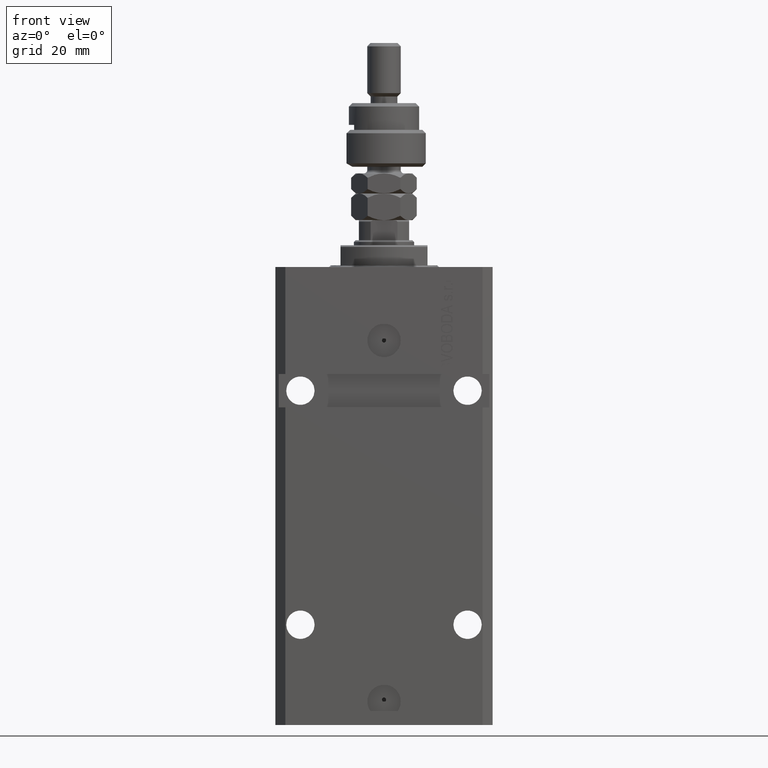
[diagram: clean part render]
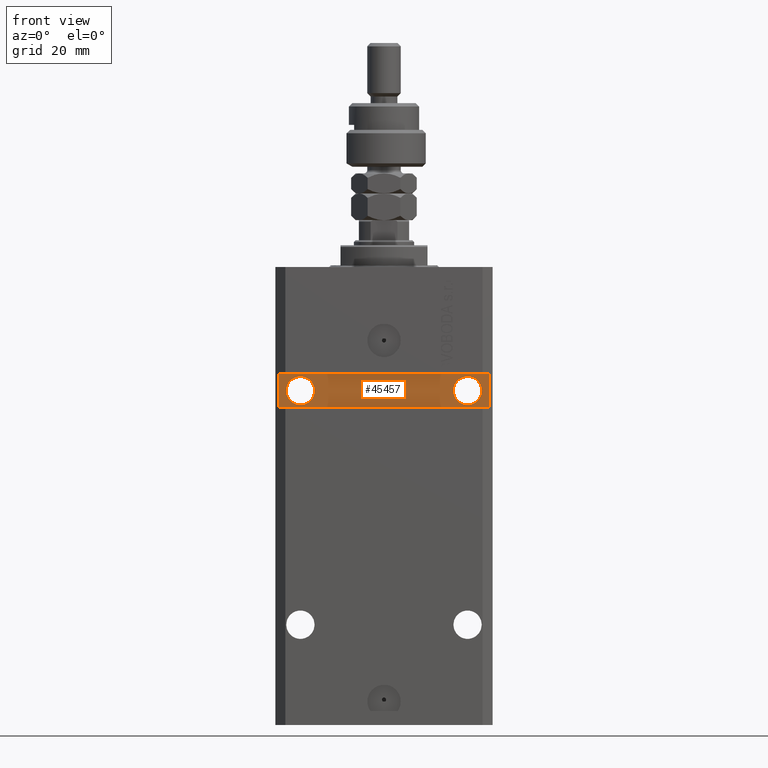
[diagram: same view with one face highlighted and labeled with its STEP entity id]
A machine part, front view. The second image highlights one B-rep face of the part: STEP entity #45457.
In plain terms, the highlighted planar face has unit normal (0, -1, 0).
Its self-contained STEP definition (entity closure, byte-faithful):
#539 = AXIS2_PLACEMENT_3D ( 'NONE', #48211, #37218, #36981 ) ;
#1251 = DIRECTION ( 'NONE',  ( 1.000000000000000000, 0.000000000000000000, 0.000000000000000000 ) ) ;
#1280 = EDGE_CURVE ( 'NONE', #37957, #22000, #43350, .T. ) ;
#1488 = AXIS2_PLACEMENT_3D ( 'NONE', #23648, #35357, #47081 ) ;
#1678 = EDGE_CURVE ( 'NONE', #20094, #33337, #27214, .T. ) ;
#1708 = DIRECTION ( 'NONE',  ( 1.067522139062765303E-16, -1.000000000000000000, 0.000000000000000000 ) ) ;
#3015 = VECTOR ( 'NONE', #6217, 1000.000000000000000 ) ;
#4470 = EDGE_CURVE ( 'NONE', #33337, #20094, #28890, .T. ) ;
#4876 = FACE_BOUND ( 'NONE', #24800, .T. ) ;
#6217 = DIRECTION ( 'NONE',  ( 0.000000000000000000, 0.000000000000000000, 1.000000000000000000 ) ) ;
#6354 = DIRECTION ( 'NONE',  ( 1.000000000000000000, 1.067522139062765303E-16, 1.067522139062765303E-16 ) ) ;
#6692 = DIRECTION ( 'NONE',  ( 1.394545208792185644E-16, -1.000000000000000000, 1.232595164407830946E-32 ) ) ;
#8106 = CARTESIAN_POINT ( 'NONE',  ( -20.75000000000621014, -20.49999999999950262, -37.00000000000000000 ) ) ;
#8797 = CARTESIAN_POINT ( 'NONE',  ( 2.166708070385810581E-15, -20.49999999999949907, 0.000000000000000000 ) ) ;
#8840 = AXIS2_PLACEMENT_3D ( 'NONE', #29162, #6692, #47972 ) ;
#9519 = FACE_BOUND ( 'NONE', #34540, .T. ) ;
#10607 = CARTESIAN_POINT ( 'NONE',  ( -31.49999999999650413, -20.49999999999950262, -137.0000000000000000 ) ) ;
#11106 = VECTOR ( 'NONE', #41470, 1000.000000000000000 ) ;
#14335 = DIRECTION ( 'NONE',  ( 0.000000000000000000, 0.000000000000000000, -1.000000000000000000 ) ) ;
#15049 = ORIENTED_EDGE ( 'NONE', *, *, #25388, .T. ) ;
#15339 = ORIENTED_EDGE ( 'NONE', *, *, #1678, .F. ) ;
#17349 = LINE ( 'NONE', #20300, #22180 ) ;
#18916 = VERTEX_POINT ( 'NONE', #35732 ) ;
#19761 = ORIENTED_EDGE ( 'NONE', *, *, #23617, .F. ) ;
#19815 = CARTESIAN_POINT ( 'NONE',  ( -24.99999999999999289, -20.49999999999950262, -37.00000000000000000 ) ) ;
#20094 = VERTEX_POINT ( 'NONE', #8106 ) ;
#20300 = CARTESIAN_POINT ( 'NONE',  ( -32.49999999999650413, -20.49999999999949907, -41.99999999999999289 ) ) ;
#20379 = AXIS2_PLACEMENT_3D ( 'NONE', #8797, #1708, #42498 ) ;
#20713 = LINE ( 'NONE', #21680, #24430 ) ;
#21408 = EDGE_CURVE ( 'NONE', #18916, #22000, #37812, .T. ) ;
#21680 = CARTESIAN_POINT ( 'NONE',  ( 31.49999999999651124, -20.49999999999949551, -137.0000000000000000 ) ) ;
#22000 = VERTEX_POINT ( 'NONE', #44242 ) ;
#22180 = VECTOR ( 'NONE', #6354, 1000.000000000000000 ) ;
#22808 = EDGE_CURVE ( 'NONE', #23073, #46140, #36145, .T. ) ;
#23073 = VERTEX_POINT ( 'NONE', #24898 ) ;
#23458 = PLANE ( 'NONE',  #20379 ) ;
#23617 = EDGE_CURVE ( 'NONE', #18916, #28816, #20713, .T. ) ;
#23648 = CARTESIAN_POINT ( 'NONE',  ( -24.99999999999999289, -20.49999999999950262, -37.00000000000000000 ) ) ;
#24430 = VECTOR ( 'NONE', #14335, 1000.000000000000000 ) ;
#24800 = EDGE_LOOP ( 'NONE', ( #15339, #27092 ) ) ;
#24898 = CARTESIAN_POINT ( 'NONE',  ( 29.24999999998905764, -20.49999999999949551, -36.99999999999999289 ) ) ;
#25388 = EDGE_CURVE ( 'NONE', #37957, #28816, #17349, .T. ) ;
#27092 = ORIENTED_EDGE ( 'NONE', *, *, #4470, .F. ) ;
#27214 = CIRCLE ( 'NONE', #1488, 4.249999999993782751 ) ;
#28577 = CARTESIAN_POINT ( 'NONE',  ( -31.49999999999650413, -20.49999999999949907, -41.99999999999999289 ) ) ;
#28816 = VERTEX_POINT ( 'NONE', #35599 ) ;
#28890 = CIRCLE ( 'NONE', #43718, 4.249999999993782751 ) ;
#29162 = CARTESIAN_POINT ( 'NONE',  ( 25.00000000000000711, -20.49999999999949551, -36.99999999999999289 ) ) ;
#29243 = ORIENTED_EDGE ( 'NONE', *, *, #36067, .F. ) ;
#30971 = CIRCLE ( 'NONE', #539, 4.249999999989050536 ) ;
#33337 = VERTEX_POINT ( 'NONE', #41650 ) ;
#34255 = ORIENTED_EDGE ( 'NONE', *, *, #21408, .T. ) ;
#34540 = EDGE_LOOP ( 'NONE', ( #38942, #29243 ) ) ;
#34680 = FACE_OUTER_BOUND ( 'NONE', #46505, .T. ) ;
#34713 = DIRECTION ( 'NONE',  ( 1.101411730780568590E-16, -1.000000000000000000, 0.000000000000000000 ) ) ;
#35357 = DIRECTION ( 'NONE',  ( 1.101411730780568590E-16, -1.000000000000000000, 0.000000000000000000 ) ) ;
#35599 = CARTESIAN_POINT ( 'NONE',  ( 31.49999999999650413, -20.49999999999949196, -41.99999999999998579 ) ) ;
#35732 = CARTESIAN_POINT ( 'NONE',  ( 31.49999999999651124, -20.49999999999949196, -32.00000000000000711 ) ) ;
#36067 = EDGE_CURVE ( 'NONE', #46140, #23073, #30971, .T. ) ;
#36145 = CIRCLE ( 'NONE', #8840, 4.249999999989050536 ) ;
#36981 = DIRECTION ( 'NONE',  ( 1.000000000000000000, 0.000000000000000000, 0.000000000000000000 ) ) ;
#37088 = CARTESIAN_POINT ( 'NONE',  ( 32.49999999999650413, -20.49999999999949196, -32.00000000000000711 ) ) ;
#37218 = DIRECTION ( 'NONE',  ( 1.394545208792185644E-16, -1.000000000000000000, 1.232595164407830946E-32 ) ) ;
#37812 = LINE ( 'NONE', #37088, #11106 ) ;
#37957 = VERTEX_POINT ( 'NONE', #28577 ) ;
#38942 = ORIENTED_EDGE ( 'NONE', *, *, #22808, .F. ) ;
#41470 = DIRECTION ( 'NONE',  ( -1.000000000000000000, -1.067522139062765303E-16, 1.067522139062765303E-16 ) ) ;
#41650 = CARTESIAN_POINT ( 'NONE',  ( -29.24999999999377920, -20.49999999999950262, -37.00000000000000000 ) ) ;
#42498 = DIRECTION ( 'NONE',  ( 1.000000000000000000, 1.067522139062765303E-16, 0.000000000000000000 ) ) ;
#43350 = LINE ( 'NONE', #10607, #3015 ) ;
#43718 = AXIS2_PLACEMENT_3D ( 'NONE', #19815, #34713, #1251 ) ;
#43834 = ORIENTED_EDGE ( 'NONE', *, *, #1280, .F. ) ;
#44242 = CARTESIAN_POINT ( 'NONE',  ( -31.49999999999650413, -20.49999999999950262, -32.00000000000000000 ) ) ;
#45310 = CARTESIAN_POINT ( 'NONE',  ( 20.75000000001095657, -20.49999999999949551, -36.99999999999999289 ) ) ;
#45457 = ADVANCED_FACE ( 'NONE', ( #9519, #4876, #34680 ), #23458, .T. ) ;
#46140 = VERTEX_POINT ( 'NONE', #45310 ) ;
#46505 = EDGE_LOOP ( 'NONE', ( #34255, #43834, #15049, #19761 ) ) ;
#47081 = DIRECTION ( 'NONE',  ( 1.000000000000000000, 0.000000000000000000, 0.000000000000000000 ) ) ;
#47972 = DIRECTION ( 'NONE',  ( 1.000000000000000000, 0.000000000000000000, 0.000000000000000000 ) ) ;
#48211 = CARTESIAN_POINT ( 'NONE',  ( 25.00000000000000711, -20.49999999999949551, -36.99999999999999289 ) ) ;